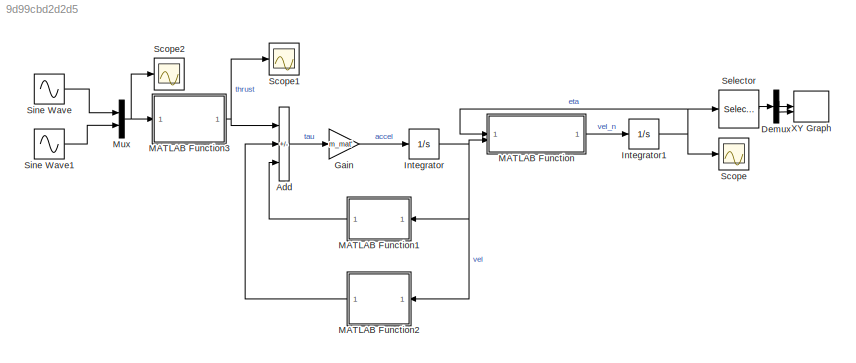
MODEL slx_9d99cbd2d2d5
KIND model
CONFIG AbsTol = auto
CONFIG EnableMultiTasking = off
CONFIG FixedStep = auto
CONFIG MaxStep = auto
CONFIG MinStep = auto
CONFIG RelTol = 1e-3
CONFIG SampleTimeConstraint = Unconstrained
CONFIG SolverName = VariableStepAuto
CONFIG StartTime = 0.0
CONFIG StopTime = 10.0
BLOCK [Sum] Add
  IconShape = rectangular
  Inputs = +--
BLOCK [Demux] Demux
  Outputs = 2
BLOCK [Gain] Gain
  Gain = m_mat'
  Multiplication = Matrix(K*u)
BLOCK [Integrator] Integrator
  InitialCondition = [0;0;0]
BLOCK [Integrator] Integrator1
  InitialCondition = [0;0;0]
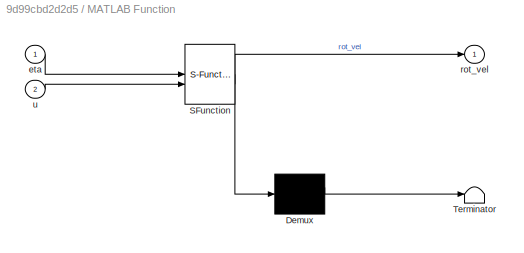
BLOCK [SubSystem] MATLAB Function
  ErrorFcn = Stateflow.Translate.translate
  LibrarySourceBlock = simulink/User-Defined\nFunctions/MATLAB Function
  PermitHierarchicalResolution = ExplicitOnly
  SFBlockType = MATLAB Function
  TreatAsAtomicUnit = on
BLOCK [Demux] MATLAB Function/ Demux 
  Outputs = 1
BLOCK [S-Function] MATLAB Function/ SFunction 
  EnableBusSupport = on
  FunctionName = sf_sfun
  PortCounts = [2 2]
  SFcnIsStateOwnerBlock = off
  SFunctionDeploymentMode = off
  Tag = Stateflow S-Function 2
BLOCK [Terminator] MATLAB Function/ Terminator 
BLOCK [Inport] MATLAB Function/eta
BLOCK [Outport] MATLAB Function/rot_vel
BLOCK [Inport] MATLAB Function/u
  Port = 2
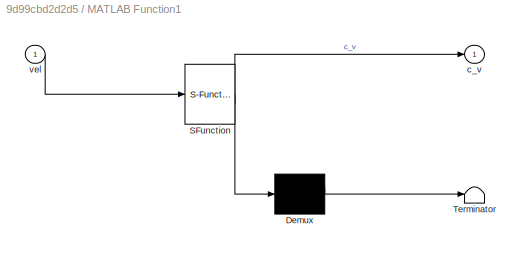
BLOCK [SubSystem] MATLAB Function1
  ErrorFcn = Stateflow.Translate.translate
  LibrarySourceBlock = simulink/User-Defined\nFunctions/MATLAB Function
  NameLocation = top
  PermitHierarchicalResolution = ExplicitOnly
  SFBlockType = MATLAB Function
  TreatAsAtomicUnit = on
BLOCK [Demux] MATLAB Function1/ Demux 
  Outputs = 1
BLOCK [S-Function] MATLAB Function1/ SFunction 
  EnableBusSupport = on
  FunctionName = sf_sfun
  Parameters = m,n_v_dot,x_u_dot,y_r_dot,y_v_dot
  PortCounts = [1 2]
  SFcnIsStateOwnerBlock = off
  SFunctionDeploymentMode = off
  Tag = Stateflow S-Function 1
BLOCK [Terminator] MATLAB Function1/ Terminator 
BLOCK [Outport] MATLAB Function1/c_v
BLOCK [Inport] MATLAB Function1/vel
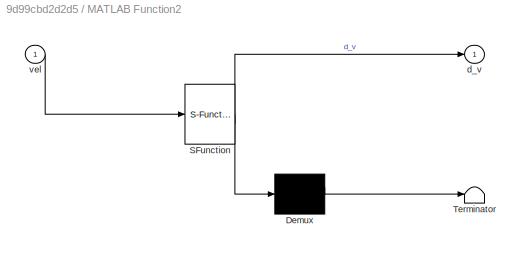
BLOCK [SubSystem] MATLAB Function2
  ErrorFcn = Stateflow.Translate.translate
  LibrarySourceBlock = simulink/User-Defined\nFunctions/MATLAB Function
  NameLocation = top
  PermitHierarchicalResolution = ExplicitOnly
  SFBlockType = MATLAB Function
  TreatAsAtomicUnit = on
BLOCK [Demux] MATLAB Function2/ Demux 
  Outputs = 1
BLOCK [S-Function] MATLAB Function2/ SFunction 
  EnableBusSupport = on
  FunctionName = sf_sfun
  Parameters = nrr,nrv,nvr,nvv,yrr,yrv,yvr,yvv
  PortCounts = [1 2]
  SFcnIsStateOwnerBlock = off
  SFunctionDeploymentMode = off
  Tag = Stateflow S-Function 3
BLOCK [Terminator] MATLAB Function2/ Terminator 
BLOCK [Outport] MATLAB Function2/d_v
BLOCK [Inport] MATLAB Function2/vel
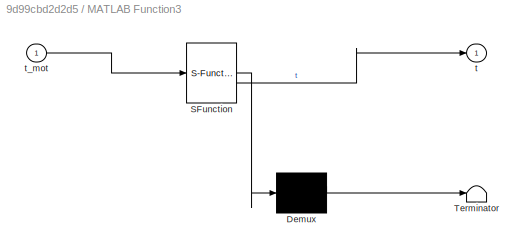
BLOCK [SubSystem] MATLAB Function3
  ErrorFcn = Stateflow.Translate.translate
  LibrarySourceBlock = simulink/User-Defined\nFunctions/MATLAB Function
  PermitHierarchicalResolution = ExplicitOnly
  SFBlockType = MATLAB Function
  TreatAsAtomicUnit = on
BLOCK [Demux] MATLAB Function3/ Demux 
  Outputs = 1
BLOCK [S-Function] MATLAB Function3/ SFunction 
  EnableBusSupport = on
  FunctionName = sf_sfun
  PortCounts = [1 2]
  SFcnIsStateOwnerBlock = off
  SFunctionDeploymentMode = off
  Tag = Stateflow S-Function 4
BLOCK [Terminator] MATLAB Function3/ Terminator 
BLOCK [Outport] MATLAB Function3/t
BLOCK [Inport] MATLAB Function3/t_mot
BLOCK [Mux] Mux
  DisplayOption = bar
  Inputs = 2
BLOCK [Scope] Scope
  Floating = off
  NumInputPorts = 1
  ScopeSpecificationString = Simulink.scopes.TimeScopeBlockCfg('CurrentConfiguration', extmgr.ConfigurationSet(extmgr.Configuration('Core','General UI',true),extmgr.Configuration('Core','Source UI',true),extmgr.Configuration('Sources','WiredSimulink',true),extmgr.Configuration('Visuals','Time Domain',true,'SerializedDisplays',{struct('MinYLimReal','-0.29866','MaxYLimReal','2.61689','YLabelReal','','MinYLimMag','0.00000','MaxY...<+1341ch>
BLOCK [Scope] Scope1
  Floating = off
  NumInputPorts = 1
  ScopeSpecificationString = Simulink.scopes.TimeScopeBlockCfg('CurrentConfiguration', extmgr.ConfigurationSet(extmgr.Configuration('Core','General UI',true),extmgr.Configuration('Core','Source UI',true),extmgr.Configuration('Sources','WiredSimulink',true,'DataLoggingVariableName','ScopeData1'),extmgr.Configuration('Visuals','Time Domain',true,'SerializedDisplays',{struct('MinYLimReal','-2.5625','MaxYLimReal','2.5625','YLabel...<+1478ch>
BLOCK [Scope] Scope2
  Floating = off
  NumInputPorts = 1
  ScopeSpecificationString = Simulink.scopes.TimeScopeBlockCfg('CurrentConfiguration', extmgr.ConfigurationSet(extmgr.Configuration('Core','General UI',true),extmgr.Configuration('Core','Source UI',true),extmgr.Configuration('Sources','WiredSimulink',true,'DataLoggingVariableName','ScopeData2'),extmgr.Configuration('Visuals','Time Domain',true,'SerializedDisplays',{struct('MinYLimReal','-5.25','MaxYLimReal','7.25','YLabelReal...<+1458ch>
BLOCK [Selector] Selector
  IndexOptions = Index vector (dialog)
  Indices = [1 2]
  InputPortWidth = 3
  OutputSizes = 1
BLOCK [Sin] Sine Wave
  Amplitude = 5
  Bias = 1
  SampleTime = 0
BLOCK [Sin] Sine Wave1
  Amplitude = 5
  Bias = 1
  Phase = pi
  SampleTime = 0
BLOCK [Record] XY Graph
  CompatibilityTag = XY
  FileSettingsInternal = {"entries":[{"content":{"excelSettings":{"content":{},"type":"Streamout.ExcelSettings"}},"type":"Streamout.FileSettingStorage","uuid":""}],"packageUris":["http:\/\/schema.mathworks.com\/mf0\/streamout_blocks\/R2020a"],"version":"1.0"}
  Layout = [1 1]
  SignalsInternal = {"entries":[{"content":{"signals":[{"content":{"blockPath":[],"dimensions":[1,1],"domain":"","lineColor":"#a2142f","plots":[1],"port":1,"sid":[""],"signalID":523,"signalName":"Demux:1"},"type":"RecordBlkView.Signal","uuid":""},{"content":{"blockPath":[],"dimensions":[1,1],"domain":"","lineColor":"#139fff","plots":[1],"port":2,"sid":[""],"signalID":527,"signalName":"Demux:2"},"type":"RecordBlkView....<+164ch>
  VisualizationBindings = {"xyplotplugin":{"info":[{"series":[{"bindingParametersList":[{"parameter":"X-Axis","signalID":523,"signalName":"Demux:1"},{"parameter":"Y-Axis","signalID":527,"signalName":"Demux:2"}],"seriesID":8926}],"subplotID":1}]}}
LINE Add:1 -> Gain:1
LINE Demux:1 -> XY Graph:1
LINE Demux:2 -> XY Graph:2
LINE Gain:1 -> Integrator:1
NET Integrator1:1 -> MATLAB Function:1, Scope:1, Selector:1
NET Integrator:1 -> MATLAB Function1:1, MATLAB Function2:1, MATLAB Function:2
LINE MATLAB Function1:1 -> Add:3
LINE MATLAB Function2:1 -> Add:2
NET MATLAB Function3:1 -> Add:1, Scope1:1
LINE MATLAB Function:1 -> Integrator1:1
NET Mux:1 -> MATLAB Function3:1, Scope2:1
LINE Selector:1 -> Demux:1
LINE Sine Wave1:1 -> Mux:2
LINE Sine Wave:1 -> Mux:1
note: NET lines group one-source signal fan-out (src -> all destinations, sorted); 1:1 wires keep LINE
CHART MATLAB Function1 states=1 transitions=1
  STATE_LABEL 'eML_blk_kernel()'
  STATE_LABEL 'SCRIPT:\nfunction c_v = coriolis(vel, m, y_v_dot, y_r_dot, n_v_dot,...\nx_u_dot)\n\nx = vel(1);\ny = vel(2);\nz = vel(3);\n\nc_rb = [\n    0, 0, -m*y;\n    0, 0, m*x;\n    m*y, -m*x, 0\n];\n\nc_a = [\n    0, 0, 2*(y_v_dot*y + z*(y_r_dot + n_v_dot)/2);\n    0, 0, -x_u_dot*m*x;\n    -2*(y_v_dot*y + z*(y_r_dot + n_v_dot)/2), x_u_dot*m*x, 0\n];\n\nc = c_rb + c_a;\nc_v = c*vel;'
CHART MATLAB Function states=1 transitions=1
  STATE_LABEL 'eML_blk_kernel()'
  STATE_LABEL 'SCRIPT:\nfunction rot_vel = rot_mat(eta, u)\ntheta = eta(3);\nJ = [cos(theta), -sin(theta), 0;\n    sin(theta), cos(theta), 0;\n    0, 0, 1];\nrot_vel = J*u;'
CHART MATLAB Function2 states=1 transitions=1
  STATE_LABEL 'eML_blk_kernel()'
  STATE_LABEL 'SCRIPT:\nfunction d_v = damping(vel, yvv, yvr, yrv, yrr, nvv, nvr, nrv, nrr)\n\nx = vel(1);\ny = vel(2);\nz = vel(3);\n\nxu = -25;\nxuu = 0;\nif(x > 1.2)\n    xu = 64.55;\n    xuu = -70.92;\nend\nyv = 0.5*(-40*1000*abs(y))*(1.1+.0045*(1.01/0.09)...\n    - 0.1*(0.27/0.09) + 0.016*((0.27/0.09)^2));\nyr = 6*(-pi*1000)*sqrt(x^2 + y^2)*0.09^2*1.01;\nnv = yr/100;\nnr = nv*1.01/3;\n\nd_1 = [\n    -xu, 0, 0;\n    0, -yv, -yr;...<+196ch>'
CHART MATLAB Function3 states=1 transitions=1
  STATE_LABEL 'eML_blk_kernel()'
  STATE_LABEL 'SCRIPT:\nfunction t = mot2t(t_mot)\n\n%t = [(t_mot(1)+t_mot(2)*0.78); 0; 0.41*(t_mot(1)-t_mot(2)*0.78)/2];\nt = [(t_mot(1)+t_mot(2)); 0; 0.41*(t_mot(1)-t_mot(2))/2];\n'
CHART  states=0 transitions=0
CHART  states=0 transitions=0
CHART  states=0 transitions=0
CHART  states=0 transitions=0
